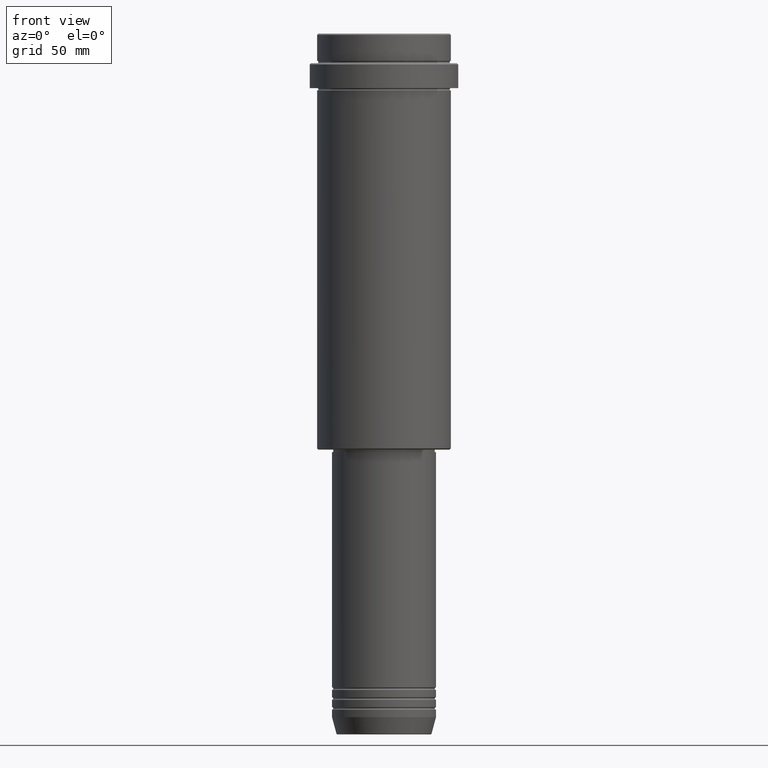
[diagram: clean part render]
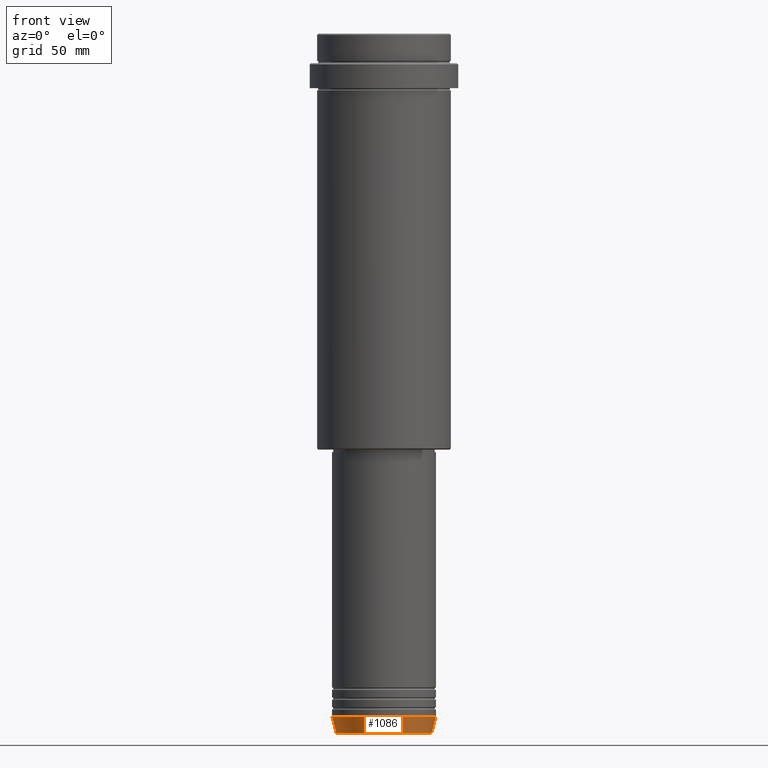
[diagram: same view with one face highlighted and labeled with its STEP entity id]
A machine part, front view. The second image highlights one B-rep face of the part: STEP entity #1086.
In plain terms, the highlighted conical surface has half-angle 15 deg.
Its self-contained STEP definition (entity closure, byte-faithful):
#40 = EDGE_CURVE ( 'NONE', #637, #644, #675, .T. ) ;
#121 = CARTESIAN_POINT ( 'NONE',  ( -21.00000000000000000, 2.571758278209441661E-15, -276.0000000000000000 ) ) ;
#127 = CIRCLE ( 'NONE', #1330, 21.00000000000000000 ) ;
#159 = CARTESIAN_POINT ( 'NONE',  ( 0.000000000000000000, 0.000000000000000000, -276.0000000000000000 ) ) ;
#226 = EDGE_LOOP ( 'NONE', ( #775, #1063, #784, #927 ) ) ;
#387 = LINE ( 'NONE', #616, #431 ) ;
#399 = DIRECTION ( 'NONE',  ( -0.000000000000000000, -0.000000000000000000, 1.000000000000000000 ) ) ;
#431 = VECTOR ( 'NONE', #1260, 1000.000000000000000 ) ;
#458 = DIRECTION ( 'NONE',  ( -0.2588190451025213501, 3.169619151431772337E-17, 0.9659258262890680902 ) ) ;
#487 = FACE_OUTER_BOUND ( 'NONE', #226, .T. ) ;
#488 = VERTEX_POINT ( 'NONE', #543 ) ;
#519 = AXIS2_PLACEMENT_3D ( 'NONE', #799, #1347, #806 ) ;
#543 = CARTESIAN_POINT ( 'NONE',  ( 21.00000000000000000, 0.000000000000000000, -276.0000000000000000 ) ) ;
#592 = DIRECTION ( 'NONE',  ( -0.000000000000000000, -0.000000000000000000, 1.000000000000000000 ) ) ;
#616 = CARTESIAN_POINT ( 'NONE',  ( 21.00000000000000000, 0.000000000000000000, -276.0000000000000000 ) ) ;
#637 = VERTEX_POINT ( 'NONE', #968 ) ;
#644 = VERTEX_POINT ( 'NONE', #1397 ) ;
#675 = LINE ( 'NONE', #121, #741 ) ;
#693 = AXIS2_PLACEMENT_3D ( 'NONE', #1390, #399, #1144 ) ;
#720 = VERTEX_POINT ( 'NONE', #1230 ) ;
#741 = VECTOR ( 'NONE', #458, 1000.000000000000000 ) ;
#775 = ORIENTED_EDGE ( 'NONE', *, *, #40, .F. ) ;
#784 = ORIENTED_EDGE ( 'NONE', *, *, #810, .T. ) ;
#799 = CARTESIAN_POINT ( 'NONE',  ( 0.000000000000000000, 0.000000000000000000, -276.0000000000000000 ) ) ;
#806 = DIRECTION ( 'NONE',  ( 1.000000000000000000, 0.000000000000000000, 0.000000000000000000 ) ) ;
#810 = EDGE_CURVE ( 'NONE', #720, #488, #387, .T. ) ;
#853 = CONICAL_SURFACE ( 'NONE', #519, 21.00000000000000000, 0.2617993877991500740 ) ;
#905 = EDGE_CURVE ( 'NONE', #644, #488, #127, .T. ) ;
#916 = EDGE_CURVE ( 'NONE', #637, #720, #1264, .T. ) ;
#927 = ORIENTED_EDGE ( 'NONE', *, *, #905, .F. ) ;
#968 = CARTESIAN_POINT ( 'NONE',  ( -19.22365507213719127, 2.462988521705001050E-15, -282.6294095225512706 ) ) ;
#998 = DIRECTION ( 'NONE',  ( 1.000000000000000000, 0.000000000000000000, 0.000000000000000000 ) ) ;
#1063 = ORIENTED_EDGE ( 'NONE', *, *, #916, .T. ) ;
#1086 = ADVANCED_FACE ( 'NONE', ( #487 ), #853, .T. ) ;
#1144 = DIRECTION ( 'NONE',  ( 1.000000000000000000, 0.000000000000000000, 0.000000000000000000 ) ) ;
#1230 = CARTESIAN_POINT ( 'NONE',  ( 19.22365507213719127, 0.000000000000000000, -282.6294095225512706 ) ) ;
#1260 = DIRECTION ( 'NONE',  ( 0.2588190451025213501, 0.000000000000000000, 0.9659258262890680902 ) ) ;
#1264 = CIRCLE ( 'NONE', #693, 19.22365507213719127 ) ;
#1330 = AXIS2_PLACEMENT_3D ( 'NONE', #159, #592, #998 ) ;
#1347 = DIRECTION ( 'NONE',  ( -0.000000000000000000, -0.000000000000000000, 1.000000000000000000 ) ) ;
#1390 = CARTESIAN_POINT ( 'NONE',  ( 0.000000000000000000, 0.000000000000000000, -282.6294095225512706 ) ) ;
#1397 = CARTESIAN_POINT ( 'NONE',  ( -21.00000000000000000, 2.571758278209441661E-15, -276.0000000000000000 ) ) ;